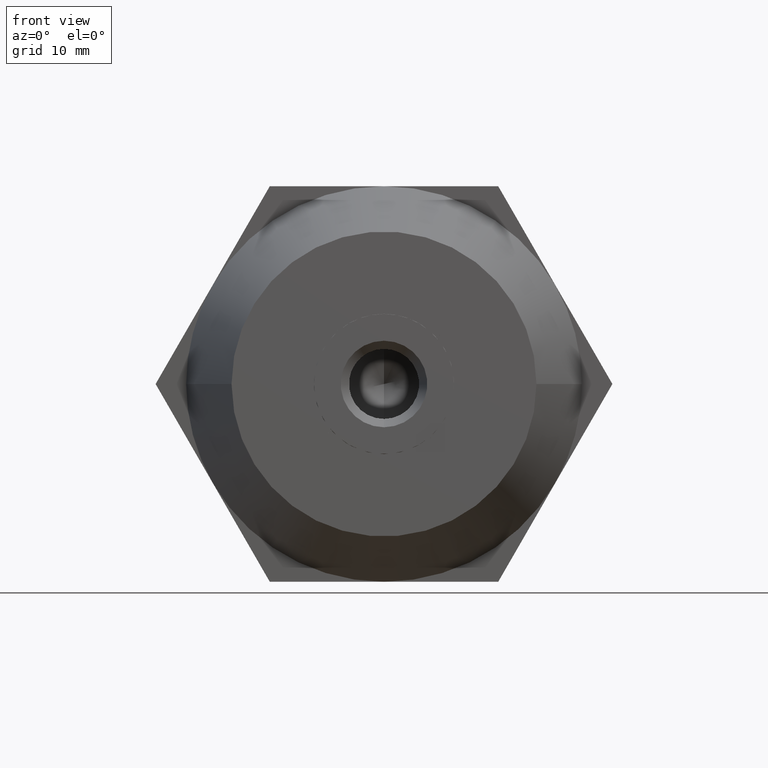
[diagram: clean part render]
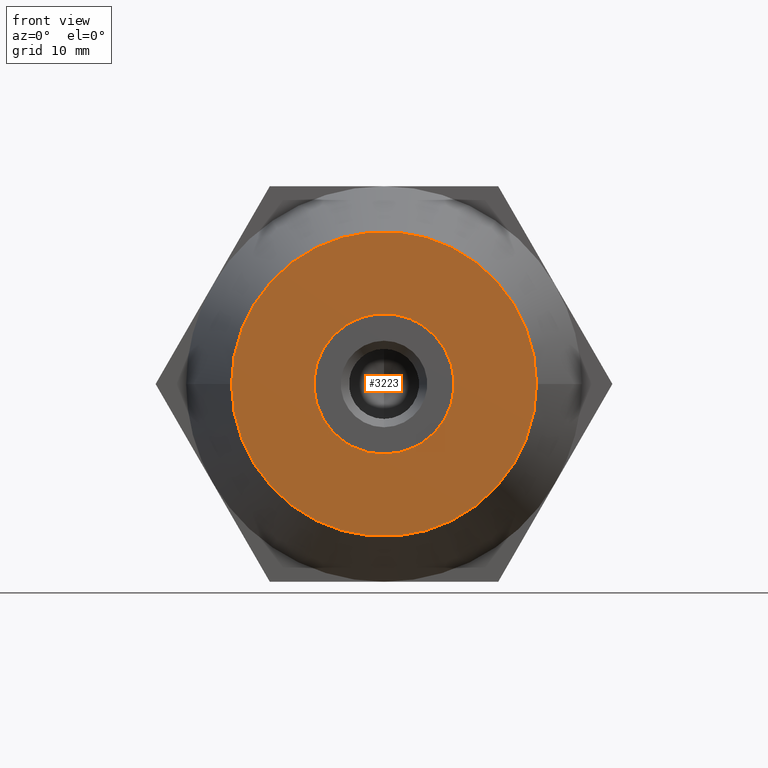
[diagram: same view with one face highlighted and labeled with its STEP entity id]
A machine part, front view. The second image highlights one B-rep face of the part: STEP entity #3223.
In plain terms, the highlighted planar face has unit normal (-0, -1, 0).
Its self-contained STEP definition (entity closure, byte-faithful):
#20 = DIRECTION ( 'NONE',  ( -0.8660254037844387100, 7.952310416959298700E-017, 0.4999999999999998900 ) ) ;
#28 = DIRECTION ( 'NONE',  ( 1.000000000000000000, 0.0000000000000000000, -1.776356839400250500E-015 ) ) ;
#36 = ORIENTED_EDGE ( 'NONE', *, *, #557, .F. ) ;
#104 = EDGE_CURVE ( 'NONE', #976, #1535, #1880, .T. ) ;
#183 = DIRECTION ( 'NONE',  ( 9.182537119821829500E-017, 1.000000000000000000, 0.0000000000000000000 ) ) ;
#225 = LINE ( 'NONE', #3591, #2022 ) ;
#227 = VECTOR ( 'NONE', #1910, 1000.000000000000000 ) ;
#232 = EDGE_CURVE ( 'NONE', #1414, #1280, #225, .T. ) ;
#290 = AXIS2_PLACEMENT_3D ( 'NONE', #2327, #183, #2650 ) ;
#307 = CARTESIAN_POINT ( 'NONE',  ( -4.607176426993850000, -25.00000000000000000, 7.155000025894639600 ) ) ;
#318 = ORIENTED_EDGE ( 'NONE', *, *, #1335, .T. ) ;
#326 = CARTESIAN_POINT ( 'NONE',  ( -18.12500000000000000, -25.00000000000000000, 0.6495190528383230100 ) ) ;
#330 = DIRECTION ( 'NONE',  ( 1.000000000000000000, 0.0000000000000000000, 0.0000000000000000000 ) ) ;
#354 = VERTEX_POINT ( 'NONE', #2178 ) ;
#387 = ORIENTED_EDGE ( 'NONE', *, *, #2290, .T. ) ;
#484 = CARTESIAN_POINT ( 'NONE',  ( 6.123233995736759800E-015, -25.00000000000000000, 0.0000000000000000000 ) ) ;
#511 = CARTESIAN_POINT ( 'NONE',  ( 4.128506240030730200E-016, -25.00000000000000000, 0.0000000000000000000 ) ) ;
#539 = CIRCLE ( 'NONE', #3456, 8.509999999999999800 ) ;
#540 = ORIENTED_EDGE ( 'NONE', *, *, #2820, .T. ) ;
#557 = EDGE_CURVE ( 'NONE', #354, #2193, #1492, .T. ) ;
#590 = CARTESIAN_POINT ( 'NONE',  ( 4.128506240030730200E-016, -25.00000000000000000, 0.0000000000000000000 ) ) ;
#597 = CIRCLE ( 'NONE', #290, 18.50000000000000000 ) ;
#617 = VERTEX_POINT ( 'NONE', #1707 ) ;
#643 = CIRCLE ( 'NONE', #3886, 8.509999999999999800 ) ;
#697 = AXIS2_PLACEMENT_3D ( 'NONE', #1529, #3686, #330 ) ;
#734 = EDGE_CURVE ( 'NONE', #3306, #976, #539, .T. ) ;
#769 = DIRECTION ( 'NONE',  ( 9.182537119821829500E-017, 1.000000000000000000, -0.0000000000000000000 ) ) ;
#795 = CARTESIAN_POINT ( 'NONE',  ( -8.500000000000000000, -25.00000000000000000, 0.4124318125460260100 ) ) ;
#847 = DIRECTION ( 'NONE',  ( 1.000000000000000000, 0.0000000000000000000, 0.0000000000000000000 ) ) ;
#924 = LINE ( 'NONE', #1538, #2314 ) ;
#976 = VERTEX_POINT ( 'NONE', #1536 ) ;
#980 = CARTESIAN_POINT ( 'NONE',  ( 3.892823573006280100, -25.00000000000000000, -7.567431838440740000 ) ) ;
#1019 = DIRECTION ( 'NONE',  ( -9.182537119821829500E-017, -1.000000000000000000, 0.0000000000000000000 ) ) ;
#1028 = CARTESIAN_POINT ( 'NONE',  ( -18.12500000000000000, -25.00000000000000000, -0.6495190528383320000 ) ) ;
#1032 = PLANE ( 'NONE',  #3355 ) ;
#1037 = DIRECTION ( 'NONE',  ( 1.000000000000000000, 0.0000000000000000000, -1.776356839400250500E-015 ) ) ;
#1050 = VERTEX_POINT ( 'NONE', #1055 ) ;
#1055 = CARTESIAN_POINT ( 'NONE',  ( -1.925929944387235900E-031, -25.00000000000000000, 8.509999999999999800 ) ) ;
#1116 = ORIENTED_EDGE ( 'NONE', *, *, #2152, .T. ) ;
#1134 = DIRECTION ( 'NONE',  ( 9.182537119821829500E-017, 1.000000000000000000, -0.0000000000000000000 ) ) ;
#1160 = CARTESIAN_POINT ( 'NONE',  ( 8.500000000000000000, -25.00000000000000000, 9.544116274330180600E-015 ) ) ;
#1195 = ORIENTED_EDGE ( 'NONE', *, *, #734, .T. ) ;
#1232 = ORIENTED_EDGE ( 'NONE', *, *, #3745, .T. ) ;
#1241 = AXIS2_PLACEMENT_3D ( 'NONE', #484, #3868, #2012 ) ;
#1258 = CIRCLE ( 'NONE', #3178, 8.509999999999999800 ) ;
#1280 = VERTEX_POINT ( 'NONE', #795 ) ;
#1335 = EDGE_CURVE ( 'NONE', #3449, #3265, #3901, .T. ) ;
#1410 = DIRECTION ( 'NONE',  ( 1.000000000000000000, 0.0000000000000000000, 0.0000000000000000000 ) ) ;
#1414 = VERTEX_POINT ( 'NONE', #2008 ) ;
#1438 = VECTOR ( 'NONE', #2626, 1000.000000000000000 ) ;
#1492 = CIRCLE ( 'NONE', #1241, 18.50000000000000000 ) ;
#1515 = DIRECTION ( 'NONE',  ( 9.182537119821829500E-017, 1.000000000000000000, -0.0000000000000000000 ) ) ;
#1529 = CARTESIAN_POINT ( 'NONE',  ( 4.128506240030730200E-016, -25.00000000000000000, 0.0000000000000000000 ) ) ;
#1535 = VERTEX_POINT ( 'NONE', #2722 ) ;
#1536 = CARTESIAN_POINT ( 'NONE',  ( 8.500000000000000000, -25.00000000000000000, 0.4124318125460619800 ) ) ;
#1538 = CARTESIAN_POINT ( 'NONE',  ( -9.625000000000000000, -25.00000000000000000, 15.37195091717380000 ) ) ;
#1596 = EDGE_CURVE ( 'NONE', #1535, #3449, #2827, .T. ) ;
#1597 = FACE_OUTER_BOUND ( 'NONE', #1783, .T. ) ;
#1707 = CARTESIAN_POINT ( 'NONE',  ( -4.607176426993720300, -25.00000000000000000, -7.155000025894719500 ) ) ;
#1722 = CARTESIAN_POINT ( 'NONE',  ( 18.50000000000000700, -25.00000000000000000, 2.602374448188125400E-015 ) ) ;
#1744 = CARTESIAN_POINT ( 'NONE',  ( -9.625000000000000000, -25.00000000000000000, -15.37195091717380000 ) ) ;
#1783 = EDGE_LOOP ( 'NONE', ( #36, #3743 ) ) ;
#1822 = CARTESIAN_POINT ( 'NONE',  ( 4.128506240030730200E-016, -25.00000000000000000, 0.0000000000000000000 ) ) ;
#1880 = LINE ( 'NONE', #1160, #2835 ) ;
#1910 = DIRECTION ( 'NONE',  ( 0.8660254037844387100, -7.952310416959298700E-017, 0.4999999999999998900 ) ) ;
#1992 = EDGE_CURVE ( 'NONE', #3597, #3420, #3718, .T. ) ;
#2008 = CARTESIAN_POINT ( 'NONE',  ( -8.500000000000000000, -25.00000000000000000, -0.4124318125460260100 ) ) ;
#2012 = DIRECTION ( 'NONE',  ( -1.000000000000000000, 0.0000000000000000000, 0.0000000000000000000 ) ) ;
#2022 = VECTOR ( 'NONE', #3649, 1000.000000000000000 ) ;
#2049 = DIRECTION ( 'NONE',  ( 3.534857879381550100E-016, -3.245896369071579600E-032, -1.000000000000000000 ) ) ;
#2052 = ORIENTED_EDGE ( 'NONE', *, *, #104, .T. ) ;
#2055 = CARTESIAN_POINT ( 'NONE',  ( 4.128506240030730200E-016, -25.00000000000000000, 0.0000000000000000000 ) ) ;
#2069 = ORIENTED_EDGE ( 'NONE', *, *, #1992, .T. ) ;
#2083 = CARTESIAN_POINT ( 'NONE',  ( -3.892823573006150000, -25.00000000000000000, 7.567431838440809200 ) ) ;
#2115 = AXIS2_PLACEMENT_3D ( 'NONE', #2055, #1134, #1410 ) ;
#2152 = EDGE_CURVE ( 'NONE', #2977, #617, #3173, .T. ) ;
#2178 = CARTESIAN_POINT ( 'NONE',  ( -18.49999999999999300, -25.00000000000000000, 0.0000000000000000000 ) ) ;
#2193 = VERTEX_POINT ( 'NONE', #1722 ) ;
#2259 = CARTESIAN_POINT ( 'NONE',  ( -18.50000000000000000, -25.00000000000000000, 0.0000000000000000000 ) ) ;
#2290 = EDGE_CURVE ( 'NONE', #3202, #3306, #924, .T. ) ;
#2302 = ORIENTED_EDGE ( 'NONE', *, *, #1596, .T. ) ;
#2314 = VECTOR ( 'NONE', #3727, 1000.000000000000000 ) ;
#2327 = CARTESIAN_POINT ( 'NONE',  ( 6.123233995736759800E-015, -25.00000000000000000, 0.0000000000000000000 ) ) ;
#2365 = DIRECTION ( 'NONE',  ( 9.182537119821829500E-017, 1.000000000000000000, -0.0000000000000000000 ) ) ;
#2389 = EDGE_CURVE ( 'NONE', #3420, #1050, #2838, .T. ) ;
#2402 = DIRECTION ( 'NONE',  ( 9.182537119821829500E-017, 1.000000000000000000, -0.0000000000000000000 ) ) ;
#2429 = EDGE_LOOP ( 'NONE', ( #387, #1195, #2052, #2302, #318, #2872, #1116, #540, #3277, #3742, #2069, #3939, #1232 ) ) ;
#2626 = DIRECTION ( 'NONE',  ( -0.8660254037844387100, 7.952310416959298700E-017, -0.4999999999999998900 ) ) ;
#2650 = DIRECTION ( 'NONE',  ( -1.000000000000000000, 0.0000000000000000000, 0.0000000000000000000 ) ) ;
#2722 = CARTESIAN_POINT ( 'NONE',  ( 8.500000000000000000, -25.00000000000000000, -0.4124318125460800200 ) ) ;
#2751 = DIRECTION ( 'NONE',  ( 1.000000000000000000, 0.0000000000000000000, 0.0000000000000000000 ) ) ;
#2820 = EDGE_CURVE ( 'NONE', #617, #1414, #3369, .T. ) ;
#2827 = CIRCLE ( 'NONE', #2933, 8.509999999999999800 ) ;
#2835 = VECTOR ( 'NONE', #2049, 1000.000000000000000 ) ;
#2836 = CARTESIAN_POINT ( 'NONE',  ( 3.892823573006245000, -25.00000000000000000, 7.567431838440759500 ) ) ;
#2838 = CIRCLE ( 'NONE', #697, 8.509999999999999800 ) ;
#2872 = ORIENTED_EDGE ( 'NONE', *, *, #3820, .T. ) ;
#2880 = CIRCLE ( 'NONE', #3642, 8.509999999999999800 ) ;
#2885 = VECTOR ( 'NONE', #20, 1000.000000000000000 ) ;
#2933 = AXIS2_PLACEMENT_3D ( 'NONE', #1822, #1515, #2751 ) ;
#2959 = DIRECTION ( 'NONE',  ( 1.000000000000000000, 0.0000000000000000000, 0.0000000000000000000 ) ) ;
#2977 = VERTEX_POINT ( 'NONE', #3336 ) ;
#2978 = EDGE_CURVE ( 'NONE', #1280, #3597, #2880, .T. ) ;
#3135 = DIRECTION ( 'NONE',  ( 1.000000000000000000, -9.182537119821829500E-017, 0.0000000000000000000 ) ) ;
#3173 = LINE ( 'NONE', #326, #2885 ) ;
#3178 = AXIS2_PLACEMENT_3D ( 'NONE', #3475, #769, #1037 ) ;
#3202 = VERTEX_POINT ( 'NONE', #2836 ) ;
#3223 = ADVANCED_FACE ( 'NONE', ( #1597, #3521 ), #1032, .T. ) ;
#3265 = VERTEX_POINT ( 'NONE', #980 ) ;
#3277 = ORIENTED_EDGE ( 'NONE', *, *, #232, .T. ) ;
#3306 = VERTEX_POINT ( 'NONE', #3894 ) ;
#3312 = EDGE_CURVE ( 'NONE', #2193, #354, #597, .T. ) ;
#3336 = CARTESIAN_POINT ( 'NONE',  ( -3.892823573006280100, -25.00000000000000000, -7.567431838440740000 ) ) ;
#3355 = AXIS2_PLACEMENT_3D ( 'NONE', #2259, #1019, #3135 ) ;
#3369 = CIRCLE ( 'NONE', #2115, 8.509999999999999800 ) ;
#3420 = VERTEX_POINT ( 'NONE', #2083 ) ;
#3449 = VERTEX_POINT ( 'NONE', #3639 ) ;
#3456 = AXIS2_PLACEMENT_3D ( 'NONE', #3887, #2365, #2959 ) ;
#3475 = CARTESIAN_POINT ( 'NONE',  ( 4.128506240030730200E-016, -25.00000000000000000, 0.0000000000000000000 ) ) ;
#3521 = FACE_BOUND ( 'NONE', #2429, .T. ) ;
#3576 = DIRECTION ( 'NONE',  ( 9.182537119821829500E-017, 1.000000000000000000, -0.0000000000000000000 ) ) ;
#3591 = CARTESIAN_POINT ( 'NONE',  ( -8.500000000000000000, -25.00000000000000000, 0.0000000000000000000 ) ) ;
#3597 = VERTEX_POINT ( 'NONE', #307 ) ;
#3639 = CARTESIAN_POINT ( 'NONE',  ( 4.607176426993720300, -25.00000000000000000, -7.155000025894719500 ) ) ;
#3642 = AXIS2_PLACEMENT_3D ( 'NONE', #590, #2402, #28 ) ;
#3649 = DIRECTION ( 'NONE',  ( 0.0000000000000000000, 0.0000000000000000000, 1.000000000000000000 ) ) ;
#3686 = DIRECTION ( 'NONE',  ( 9.182537119821829500E-017, 1.000000000000000000, -0.0000000000000000000 ) ) ;
#3718 = LINE ( 'NONE', #1028, #227 ) ;
#3727 = DIRECTION ( 'NONE',  ( 0.8660254037844387100, -7.952310416959298700E-017, -0.4999999999999998900 ) ) ;
#3742 = ORIENTED_EDGE ( 'NONE', *, *, #2978, .T. ) ;
#3743 = ORIENTED_EDGE ( 'NONE', *, *, #3312, .F. ) ;
#3745 = EDGE_CURVE ( 'NONE', #1050, #3202, #1258, .T. ) ;
#3820 = EDGE_CURVE ( 'NONE', #3265, #2977, #643, .T. ) ;
#3868 = DIRECTION ( 'NONE',  ( 9.182537119821829500E-017, 1.000000000000000000, 0.0000000000000000000 ) ) ;
#3886 = AXIS2_PLACEMENT_3D ( 'NONE', #511, #3576, #847 ) ;
#3887 = CARTESIAN_POINT ( 'NONE',  ( 4.128506240030730200E-016, -25.00000000000000000, 0.0000000000000000000 ) ) ;
#3894 = CARTESIAN_POINT ( 'NONE',  ( 4.607176426993739900, -25.00000000000000000, 7.155000025894699100 ) ) ;
#3901 = LINE ( 'NONE', #1744, #1438 ) ;
#3939 = ORIENTED_EDGE ( 'NONE', *, *, #2389, .T. ) ;